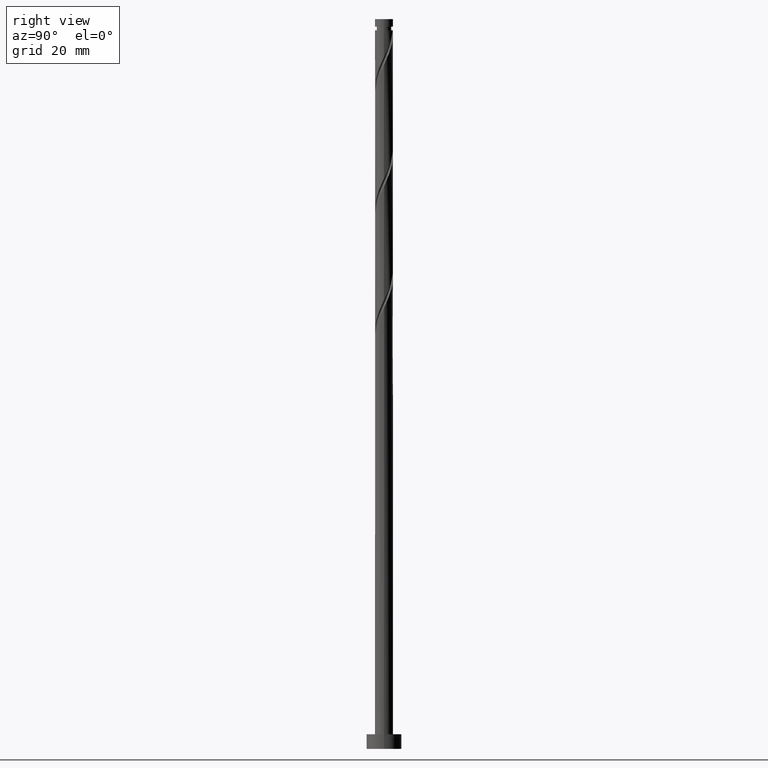
[diagram: clean part render]
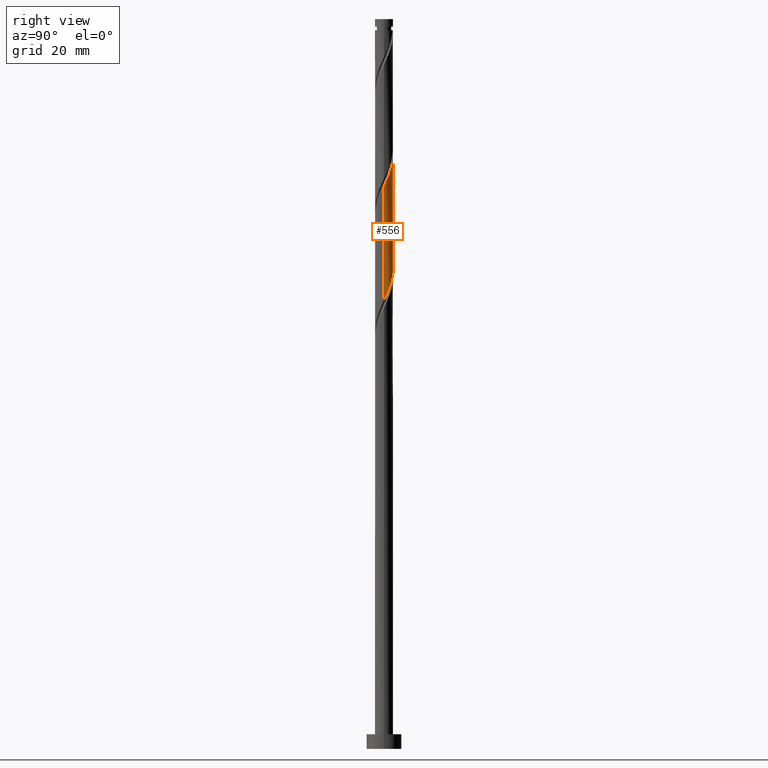
[diagram: same view with one face highlighted and labeled with its STEP entity id]
A machine part, right view. The second image highlights one B-rep face of the part: STEP entity #556.
In plain terms, the highlighted cylindrical surface (edge-blend (fillet) strip) has radius 3.1 mm, axis along (-0, -0, -1).
Its self-contained STEP definition (entity closure, byte-faithful):
#2 = CARTESIAN_POINT ( 'NONE',  ( -0.2480122259768767212, 3.112904275694731826, 203.7126723015695973 ) ) ;
#4 = CYLINDRICAL_SURFACE ( 'NONE', #1510, 3.100000000000000089 ) ;
#8 = CARTESIAN_POINT ( 'NONE',  ( -2.420982992632351838, 1.972441239494199250, 170.0588261477234653 ) ) ;
#18 = CARTESIAN_POINT ( 'NONE',  ( 0.5041613131675937165, 3.081802145527464010, 202.1101081990054524 ) ) ;
#23 = CARTESIAN_POINT ( 'NONE',  ( -0.1280745435953560274, 3.097353210611092145, 164.4498517887490436 ) ) ;
#46 = CARTESIAN_POINT ( 'NONE',  ( 3.090207698699935612, 0.2462039376120576106, 193.2960056349029685 ) ) ;
#74 = ORIENTED_EDGE ( 'NONE', *, *, #136, .T. ) ;
#83 = ORIENTED_EDGE ( 'NONE', *, *, #1076, .F. ) ;
#114 =( BOUNDED_CURVE ( )  B_SPLINE_CURVE ( 2, ( #628, #1022, #1748, #590, #1576, #303, #1584, #8, #283, #1179, #149, #1433, #1838, #1734, #23, #1140, #602, #1444, #1454, #1300, #1168, #461, #294, #1693, #1148, #1724, #724, #315, #1703 ),
 .UNSPECIFIED., .F., .T. ) 
 B_SPLINE_CURVE_WITH_KNOTS ( ( 3, 2, 2, 2, 2, 2, 2, 2, 2, 2, 2, 2, 2, 2, 3 ),
 ( 0.6795271625973833274, 0.6826923076923077094, 0.6923076923076922906, 0.7019230769230768718, 0.7115384615384615641, 0.7211538461538461453, 0.7307692307692307265, 0.7403846153846154188, 0.7500000000000000000, 0.7596153846153845812, 0.7692307692307692735, 0.7788461538461538547, 0.7884615384615384359, 0.7980769230769231282, 0.8045271625973833274 ),
 .UNSPECIFIED. ) 
 CURVE ( )  GEOMETRIC_REPRESENTATION_ITEM ( )  RATIONAL_B_SPLINE_CURVE ( ( 0.9061636035682864021, 0.9069090390690750514, 0.9090909090909315982, 0.9024626128164350281, 0.9090909090909315982, 0.9024626128164350281, 0.9090909090909315982, 0.9024626128164350281, 0.9090909090909315982, 0.9024626128164350281, 0.9090909090909315982, 0.9024626128164350281, 0.9090909090909315982, 0.9024626128164350281, 0.9090909090909315982, 0.9024626128164350281, 0.9090909090909315982, 0.9024626128164350281, 0.9090909090909315982, 0.9024626128164350281, 0.9090909090909315982, 0.9024626128164350281, 0.9090909090909315982, 0.9024626128164350281, 0.9090909090909315982, 0.9024626128164350281, 0.9090909090909315982, 0.9046444828382915748, 0.9061636035682864021 ) ) 
 REPRESENTATION_ITEM ( '' )  );
#136 = EDGE_CURVE ( 'NONE', #364, #781, #541, .T. ) ;
#149 = CARTESIAN_POINT ( 'NONE',  ( -1.552816185334429777, 2.683050855754215203, 167.6549799938772765 ) ) ;
#155 = CARTESIAN_POINT ( 'NONE',  ( -1.958059922082859172, 2.403331300826604178, 207.7190825579798457 ) ) ;
#164 = CARTESIAN_POINT ( 'NONE',  ( 1.878597541326295861, 2.494504834951285943, 198.9049799938772765 ) ) ;
#175 = CARTESIAN_POINT ( 'NONE',  ( 2.822669712321752122, 1.335746528729902183, 195.6998517887490436 ) ) ;
#198 = VECTOR ( 'NONE', #568, 1000.000000000000000 ) ;
#252 = EDGE_CURVE ( 'NONE', #254, #551, #858, .T. ) ;
#254 = VERTEX_POINT ( 'NONE', #986 ) ;
#283 = CARTESIAN_POINT ( 'NONE',  ( -2.149790266979321185, 2.233473037222740931, 169.2575440964413929 ) ) ;
#290 = CARTESIAN_POINT ( 'NONE',  ( 2.621826352477054645, 1.654093884112052937, 196.5011338400311729 ) ) ;
#294 = CARTESIAN_POINT ( 'NONE',  ( 2.476317086136641699, 1.864900450133392784, 158.0395953784926917 ) ) ;
#301 = CARTESIAN_POINT ( 'NONE',  ( 3.060313128317948994, 0.6214230849569025716, 194.0972876861849841 ) ) ;
#303 = CARTESIAN_POINT ( 'NONE',  ( -2.822669712321746793, 1.335746528729902183, 171.6613902502875533 ) ) ;
#315 = CARTESIAN_POINT ( 'NONE',  ( 3.100000000000000533, 0.2518949594648384749, 154.2982436327585276 ) ) ;
#322 = CARTESIAN_POINT ( 'NONE',  ( 2.420982992632358055, 1.972441239494200138, 197.3024158913131316 ) ) ;
#364 = VERTEX_POINT ( 'NONE', #1095 ) ;
#454 = CARTESIAN_POINT ( 'NONE',  ( -2.249877174969360460, 2.165579781819277905, 208.5203646092618612 ) ) ;
#461 = CARTESIAN_POINT ( 'NONE',  ( 2.249877174969357796, 2.165579781819274352, 158.8408774297747357 ) ) ;
#466 = CARTESIAN_POINT ( 'NONE',  ( -1.326007432615846193, 2.802089272069603343, 206.1165184554157577 ) ) ;
#541 = LINE ( 'NONE', #1523, #682 ) ;
#551 = VERTEX_POINT ( 'NONE', #582 ) ;
#556 = ADVANCED_FACE ( 'NONE', ( #754 ), #4, .T. ) ;
#568 = DIRECTION ( 'NONE',  ( -0.000000000000000000, -0.000000000000000000, -1.000000000000000000 ) ) ;
#582 = CARTESIAN_POINT ( 'NONE',  ( -3.099999999999999645, -5.384137871983187194E-15, 174.5918762287435584 ) ) ;
#589 = DIRECTION ( 'NONE',  ( -1.000000000000000000, 0.000000000000000000, 0.000000000000000000 ) ) ;
#590 = CARTESIAN_POINT ( 'NONE',  ( -3.060313128317944109, 0.6214230849569030157, 173.2639543528516697 ) ) ;
#597 = CARTESIAN_POINT ( 'NONE',  ( -0.9857721960353346136, 2.963095724305278011, 205.3152364041336853 ) ) ;
#602 = CARTESIAN_POINT ( 'NONE',  ( 0.6168922110061069164, 3.037999999999998924, 162.8472876861850125 ) ) ;
#616 = CARTESIAN_POINT ( 'NONE',  ( -3.059332338079534530, 0.5004854095583979312, 212.5267748656722233 ) ) ;
#626 = CARTESIAN_POINT ( 'NONE',  ( 1.552816185334434218, 2.683050855754219199, 199.7062620451593489 ) ) ;
#628 = CARTESIAN_POINT ( 'NONE',  ( -3.099999999999999645, -5.384137871983187194E-15, 174.5918762287435584 ) ) ;
#682 = VECTOR ( 'NONE', #1107, 1000.000000000000000 ) ;
#724 = CARTESIAN_POINT ( 'NONE',  ( 3.059332338079530089, 0.5004854095583954887, 154.8344671733644873 ) ) ;
#730 = CARTESIAN_POINT ( 'NONE',  ( -3.100000000000004974, -3.365086169989463498E-15, 213.6026991436264098 ) ) ;
#731 = CARTESIAN_POINT ( 'NONE',  ( 0.000000000000000000, 0.000000000000000000, 250.0000000000000000 ) ) ;
#740 = CARTESIAN_POINT ( 'NONE',  ( 0.8655980712550847000, 2.976699511042306234, 201.3088261477234369 ) ) ;
#753 = CARTESIAN_POINT ( 'NONE',  ( -2.850659702190538436, 1.218088363915763805, 210.9242107631080216 ) ) ;
#754 = FACE_OUTER_BOUND ( 'NONE', #1116, .T. ) ;
#781 = VERTEX_POINT ( 'NONE', #941 ) ;
#858 = LINE ( 'NONE', #1143, #198 ) ;
#869 = CARTESIAN_POINT ( 'NONE',  ( -0.6168922110061059172, 3.038000000000004697, 204.5139543528516413 ) ) ;
#885 = CARTESIAN_POINT ( 'NONE',  ( 2.149790266979326070, 2.233473037222744040, 198.1036979425952609 ) ) ;
#887 = DIRECTION ( 'NONE',  ( -0.000000000000000000, -0.000000000000000000, -1.000000000000000000 ) ) ;
#903 = CARTESIAN_POINT ( 'NONE',  ( -2.476317086136644807, 1.864900450133398113, 209.3216466605439621 ) ) ;
#941 = CARTESIAN_POINT ( 'NONE',  ( 3.099999999999999645, 4.112883096653824131E-15, 153.7585428954102156 ) ) ;
#986 = CARTESIAN_POINT ( 'NONE',  ( -3.100000000000004974, -3.365086169989463498E-15, 213.6026991436264098 ) ) ;
#1020 = CARTESIAN_POINT ( 'NONE',  ( -2.998562407077148162, 0.8719556093840096223, 211.7254928143900941 ) ) ;
#1022 = CARTESIAN_POINT ( 'NONE',  ( -3.099999999999999645, 0.1232967040439837680, 174.3277053131106129 ) ) ;
#1076 = EDGE_CURVE ( 'NONE', #551, #781, #114, .T. ) ;
#1095 = CARTESIAN_POINT ( 'NONE',  ( 3.100000000000005418, 1.600285423061656395E-15, 192.7693658102930954 ) ) ;
#1107 = DIRECTION ( 'NONE',  ( -0.000000000000000000, -0.000000000000000000, -1.000000000000000000 ) ) ;
#1116 = EDGE_LOOP ( 'NONE', ( #1623, #74, #83, #1458 ) ) ;
#1140 = CARTESIAN_POINT ( 'NONE',  ( 0.2480122259768786641, 3.112904275694726053, 163.6485697374670849 ) ) ;
#1143 = CARTESIAN_POINT ( 'NONE',  ( -3.100000000000000089, 0.000000000000000000, 250.0000000000000000 ) ) ;
#1148 = CARTESIAN_POINT ( 'NONE',  ( 2.850659702190533995, 1.218088363915759365, 156.4370312759286037 ) ) ;
#1168 = CARTESIAN_POINT ( 'NONE',  ( 1.958059922082858728, 2.403331300826598405, 159.6421594810567512 ) ) ;
#1173 = CARTESIAN_POINT ( 'NONE',  ( 2.941491420319851446, 0.9785848068434013225, 194.8985697374669996 ) ) ;
#1179 = CARTESIAN_POINT ( 'NONE',  ( -1.878597541326290532, 2.494504834951285055, 168.4562620451593489 ) ) ;
#1192 = CARTESIAN_POINT ( 'NONE',  ( 0.1280745435953598022, 3.097353210611097918, 202.9113902502874964 ) ) ;
#1296 = CARTESIAN_POINT ( 'NONE',  ( 3.100000000000005418, 1.600285423061656395E-15, 192.7693658102930954 ) ) ;
#1300 = CARTESIAN_POINT ( 'NONE',  ( 1.666242669196356996, 2.641082819833925122, 160.4434415323388237 ) ) ;
#1306 = CARTESIAN_POINT ( 'NONE',  ( 1.227034829342573241, 2.871596876557151123, 200.5075440964413360 ) ) ;
#1315 = CARTESIAN_POINT ( 'NONE',  ( -3.100000000000003642, 0.2518949594648537404, 213.0629984062781546 ) ) ;
#1433 = CARTESIAN_POINT ( 'NONE',  ( -1.227034829342569688, 2.871596876557147127, 166.8536979425952893 ) ) ;
#1435 = EDGE_CURVE ( 'NONE', #364, #254, #1447, .T. ) ;
#1444 = CARTESIAN_POINT ( 'NONE',  ( 0.9857721960353355017, 2.963095724305272238, 162.0460056349029117 ) ) ;
#1447 =( BOUNDED_CURVE ( )  B_SPLINE_CURVE ( 2, ( #1296, #1581, #46, #301, #1173, #175, #290, #322, #885, #164, #626, #1306, #740, #18, #1192, #2, #869, #597, #466, #1717, #155, #454, #903, #1450, #753, #1020, #616, #1315, #730 ),
 .UNSPECIFIED., .F., .T. ) 
 B_SPLINE_CURVE_WITH_KNOTS ( ( 3, 2, 2, 2, 2, 2, 2, 2, 2, 2, 2, 2, 2, 2, 3 ),
 ( 0.4295271625973833829, 0.4326923076923077094, 0.4423076923076922906, 0.4519230769230768718, 0.4615384615384615641, 0.4711538461538461453, 0.4807692307692307265, 0.4903846153846154188, 0.5000000000000000000, 0.5096153846153845812, 0.5192307692307691624, 0.5288461538461538547, 0.5384615384615384359, 0.5480769230769231282, 0.5545271625973829943 ),
 .UNSPECIFIED. ) 
 CURVE ( )  GEOMETRIC_REPRESENTATION_ITEM ( )  RATIONAL_B_SPLINE_CURVE ( ( 0.9061636035682938406, 0.9069090390690826009, 0.9090909090909391477, 0.9024626128164425776, 0.9090909090909391477, 0.9024626128164425776, 0.9090909090909391477, 0.9024626128164425776, 0.9090909090909391477, 0.9024626128164425776, 0.9090909090909391477, 0.9024626128164425776, 0.9090909090909391477, 0.9024626128164425776, 0.9090909090909391477, 0.9024626128164425776, 0.9090909090909391477, 0.9024626128164425776, 0.9090909090909391477, 0.9024626128164425776, 0.9090909090909391477, 0.9024626128164425776, 0.9090909090909391477, 0.9024626128164425776, 0.9090909090909391477, 0.9024626128164425776, 0.9090909090909391477, 0.9046444828382993464, 0.9061636035682938406 ) ) 
 REPRESENTATION_ITEM ( '' )  );
#1450 = CARTESIAN_POINT ( 'NONE',  ( -2.702756997303928266, 1.564221118447517433, 210.1229287118259492 ) ) ;
#1454 = CARTESIAN_POINT ( 'NONE',  ( 1.326007432615846859, 2.802089272069597570, 161.2447235836208392 ) ) ;
#1458 = ORIENTED_EDGE ( 'NONE', *, *, #252, .F. ) ;
#1510 = AXIS2_PLACEMENT_3D ( 'NONE', #731, #887, #589 ) ;
#1523 = CARTESIAN_POINT ( 'NONE',  ( 3.100000000000000089, 3.796405077356794918E-16, 250.0000000000000000 ) ) ;
#1576 = CARTESIAN_POINT ( 'NONE',  ( -2.941491420319844785, 0.9785848068434026548, 172.4626723015696257 ) ) ;
#1581 = CARTESIAN_POINT ( 'NONE',  ( 3.100000000000005862, 0.1232967040439842260, 193.0335367259260693 ) ) ;
#1584 = CARTESIAN_POINT ( 'NONE',  ( -2.621826352477049316, 1.654093884112051160, 170.8601081990055093 ) ) ;
#1623 = ORIENTED_EDGE ( 'NONE', *, *, #1435, .F. ) ;
#1693 = CARTESIAN_POINT ( 'NONE',  ( 2.702756997303925157, 1.564221118447511216, 157.2383133272106477 ) ) ;
#1703 = CARTESIAN_POINT ( 'NONE',  ( 3.099999999999999645, 4.112883096653824920E-15, 153.7585428954102440 ) ) ;
#1717 = CARTESIAN_POINT ( 'NONE',  ( -1.666242669196358106, 2.641082819833930007, 206.9178005066977732 ) ) ;
#1724 = CARTESIAN_POINT ( 'NONE',  ( 2.998562407077144609, 0.8719556093840056255, 155.6357492246465597 ) ) ;
#1734 = CARTESIAN_POINT ( 'NONE',  ( -0.5041613131675906079, 3.081802145527458681, 165.2511338400311445 ) ) ;
#1748 = CARTESIAN_POINT ( 'NONE',  ( -3.090207698699929395, 0.2462039376120597756, 174.0652364041337421 ) ) ;
#1838 = CARTESIAN_POINT ( 'NONE',  ( -0.8655980712550804812, 2.976699511042302237, 166.0524158913131316 ) ) ;